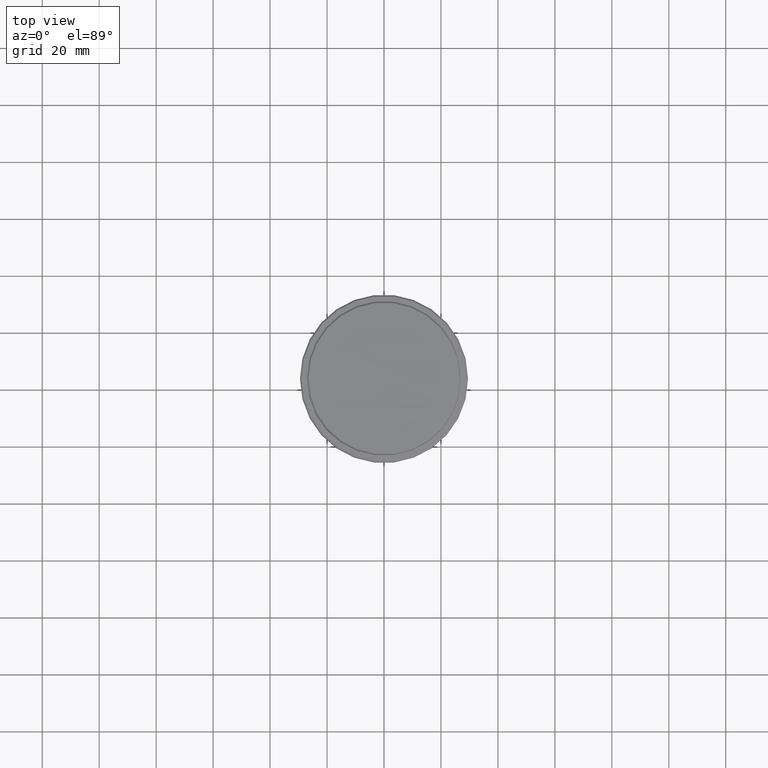
[diagram: clean part render]
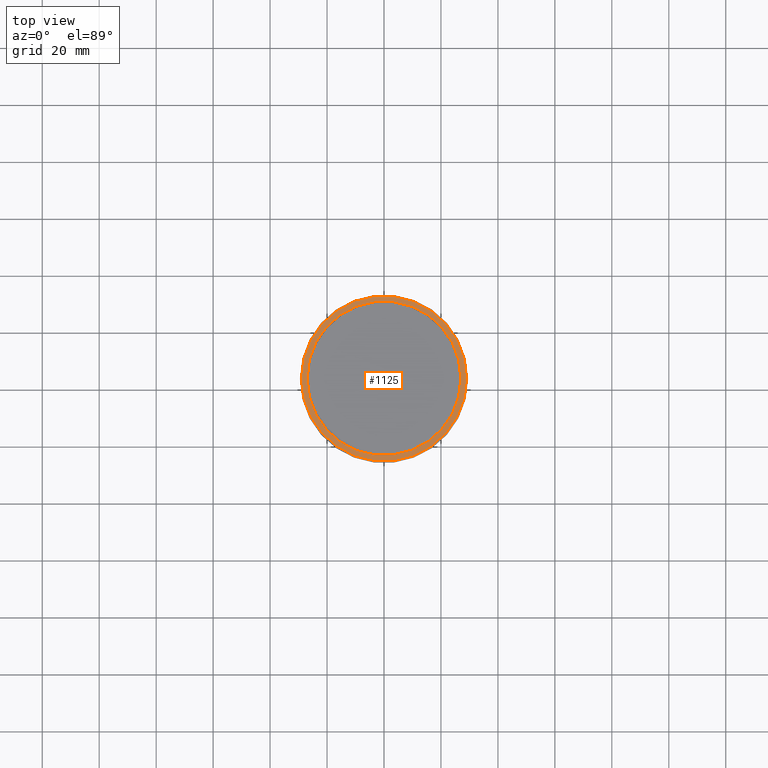
[diagram: same view with one face highlighted and labeled with its STEP entity id]
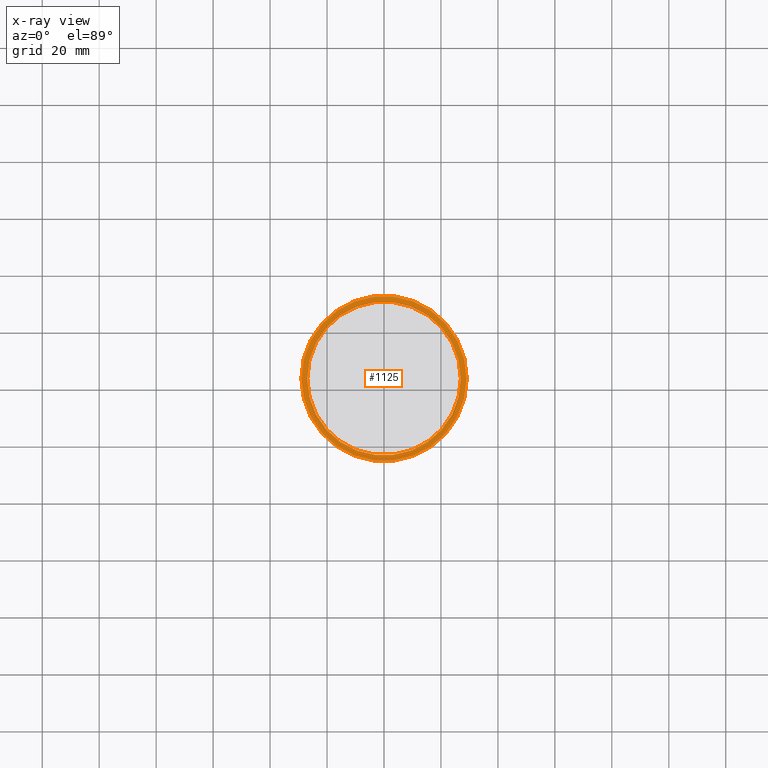
[diagram: x-ray of the same camera — body ghosted, the highlighted face saturated]
A machine part, top view. The second image highlights one B-rep face of the part: STEP entity #1125.
The next image is the same camera in x-ray: the body ghosted, the highlighted face saturated — about 0% of this face is hidden behind the body in this view.
In plain terms, the highlighted planar face has unit normal (0, -0, 1).
Its self-contained STEP definition (entity closure, byte-faithful):
#21 = CARTESIAN_POINT ( 'NONE',  ( 0.000000000000000000, 26.49999999999999645, -12.00000000000000355 ) ) ;
#30 = CARTESIAN_POINT ( 'NONE',  ( -29.00000000000005329, 0.000000000000000000, -12.00000000000000355 ) ) ;
#34 = EDGE_CURVE ( 'NONE', #1141, #1038, #630, .T. ) ;
#35 = CARTESIAN_POINT ( 'NONE',  ( 0.000000000000000000, 0.000000000000000000, -12.00000000000000355 ) ) ;
#58 = DIRECTION ( 'NONE',  ( -0.000000000000000000, -0.000000000000000000, 1.000000000000000000 ) ) ;
#66 = EDGE_LOOP ( 'NONE', ( #236, #1302 ) ) ;
#92 = DIRECTION ( 'NONE',  ( 0.000000000000000000, 0.000000000000000000, -1.000000000000000000 ) ) ;
#114 = DIRECTION ( 'NONE',  ( 1.000000000000000000, 0.000000000000000000, 0.000000000000000000 ) ) ;
#204 = AXIS2_PLACEMENT_3D ( 'NONE', #21, #456, #114 ) ;
#208 = CARTESIAN_POINT ( 'NONE',  ( 0.000000000000000000, 0.000000000000000000, -12.00000000000000355 ) ) ;
#236 = ORIENTED_EDGE ( 'NONE', *, *, #34, .T. ) ;
#346 = FACE_OUTER_BOUND ( 'NONE', #608, .T. ) ;
#387 = EDGE_CURVE ( 'NONE', #759, #918, #1081, .T. ) ;
#423 = PLANE ( 'NONE',  #204 ) ;
#456 = DIRECTION ( 'NONE',  ( 0.000000000000000000, -0.000000000000000000, 1.000000000000000000 ) ) ;
#466 = AXIS2_PLACEMENT_3D ( 'NONE', #1353, #1263, #688 ) ;
#469 = DIRECTION ( 'NONE',  ( 1.000000000000000000, 0.000000000000000000, 0.000000000000000000 ) ) ;
#519 = ORIENTED_EDGE ( 'NONE', *, *, #826, .T. ) ;
#531 = DIRECTION ( 'NONE',  ( 1.000000000000000000, 0.000000000000000000, 0.000000000000000000 ) ) ;
#608 = EDGE_LOOP ( 'NONE', ( #707, #519 ) ) ;
#630 = CIRCLE ( 'NONE', #1106, 26.99999999999999645 ) ;
#633 = CARTESIAN_POINT ( 'NONE',  ( 29.00000000000005329, 3.582091887506010972E-15, -12.00000000000000355 ) ) ;
#646 = CARTESIAN_POINT ( 'NONE',  ( -26.99999999999999645, 3.306546357697853339E-15, -12.00000000000000355 ) ) ;
#688 = DIRECTION ( 'NONE',  ( 1.000000000000000000, 0.000000000000000000, 0.000000000000000000 ) ) ;
#707 = ORIENTED_EDGE ( 'NONE', *, *, #387, .T. ) ;
#758 = CARTESIAN_POINT ( 'NONE',  ( 26.99999999999999645, 0.000000000000000000, -12.00000000000000355 ) ) ;
#759 = VERTEX_POINT ( 'NONE', #30 ) ;
#826 = EDGE_CURVE ( 'NONE', #918, #759, #908, .T. ) ;
#887 = AXIS2_PLACEMENT_3D ( 'NONE', #35, #58, #469 ) ;
#888 = AXIS2_PLACEMENT_3D ( 'NONE', #1115, #1033, #1361 ) ;
#908 = CIRCLE ( 'NONE', #887, 29.00000000000005329 ) ;
#918 = VERTEX_POINT ( 'NONE', #633 ) ;
#968 = FACE_BOUND ( 'NONE', #66, .T. ) ;
#976 = CIRCLE ( 'NONE', #888, 26.99999999999999645 ) ;
#1033 = DIRECTION ( 'NONE',  ( 0.000000000000000000, 0.000000000000000000, -1.000000000000000000 ) ) ;
#1038 = VERTEX_POINT ( 'NONE', #646 ) ;
#1081 = CIRCLE ( 'NONE', #466, 29.00000000000005329 ) ;
#1106 = AXIS2_PLACEMENT_3D ( 'NONE', #208, #92, #531 ) ;
#1115 = CARTESIAN_POINT ( 'NONE',  ( 0.000000000000000000, 0.000000000000000000, -12.00000000000000355 ) ) ;
#1125 = ADVANCED_FACE ( 'NONE', ( #346, #968 ), #423, .T. ) ;
#1141 = VERTEX_POINT ( 'NONE', #758 ) ;
#1173 = EDGE_CURVE ( 'NONE', #1038, #1141, #976, .T. ) ;
#1263 = DIRECTION ( 'NONE',  ( -0.000000000000000000, -0.000000000000000000, 1.000000000000000000 ) ) ;
#1302 = ORIENTED_EDGE ( 'NONE', *, *, #1173, .T. ) ;
#1353 = CARTESIAN_POINT ( 'NONE',  ( 0.000000000000000000, 0.000000000000000000, -12.00000000000000355 ) ) ;
#1361 = DIRECTION ( 'NONE',  ( 1.000000000000000000, 0.000000000000000000, 0.000000000000000000 ) ) ;